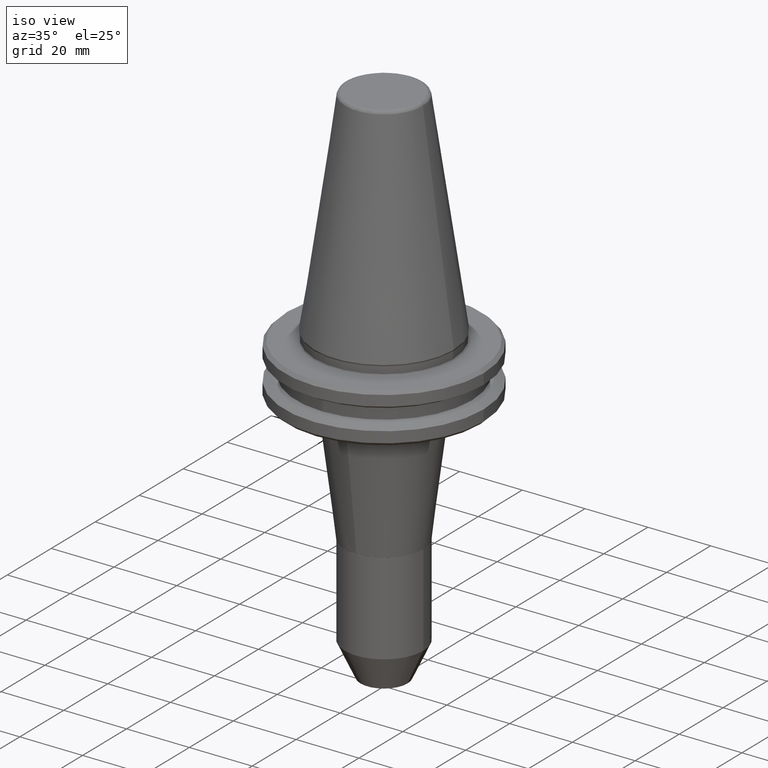
[diagram: clean part render]
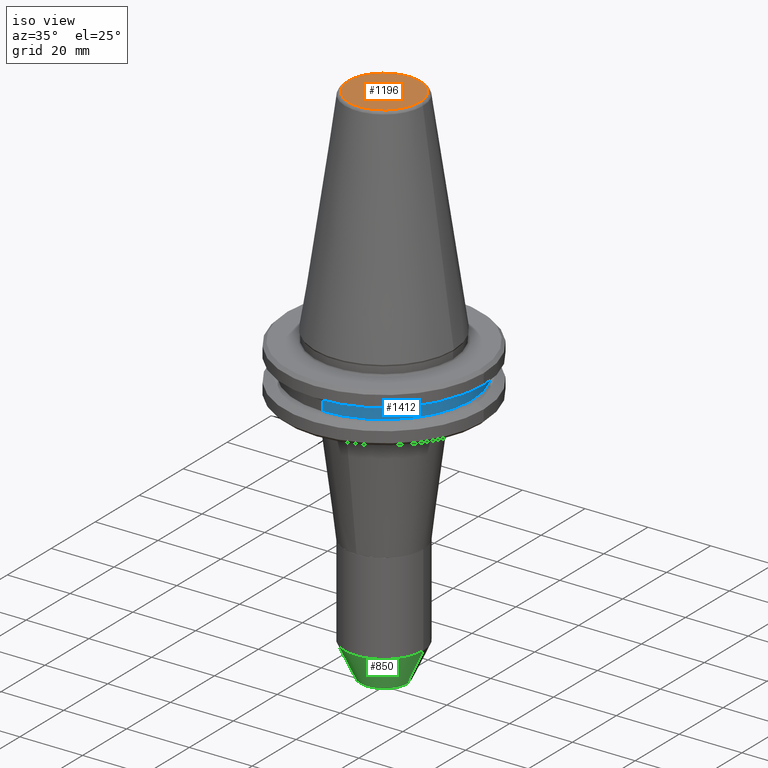
[diagram: same view with three faces highlighted in distinct colors, each labeled with its STEP entity id]
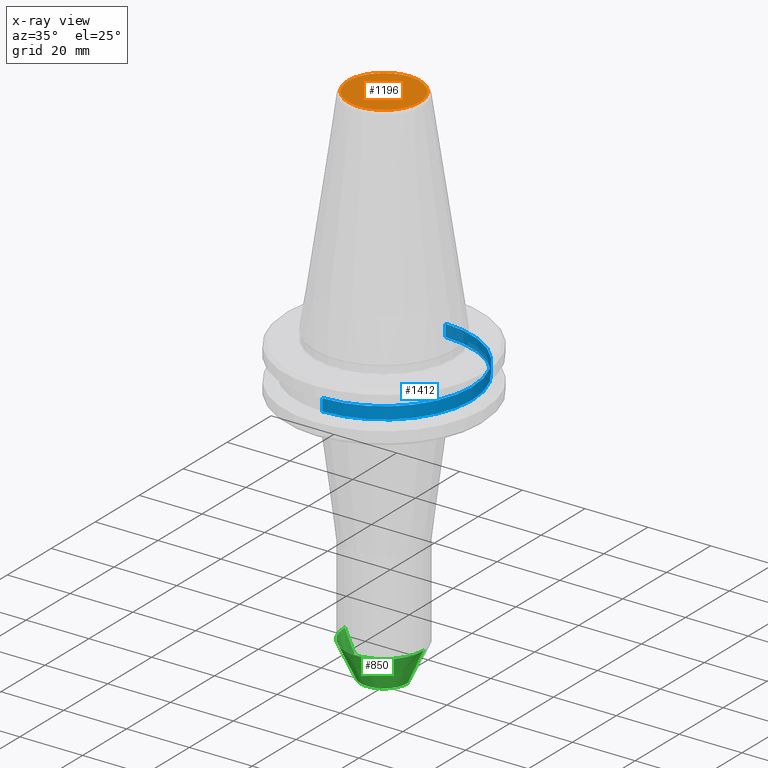
[diagram: x-ray of the same camera — body ghosted, the three highlighted faces saturated]
A machine part, iso view with three faces highlighted in distinct colors.
The next image is the same camera in x-ray (body ghosted, the three faces saturated) — at least one of them is partly hidden behind the body in this view.
Their STEP definitions:

[orange] entity #1196 — the highlighted planar face has unit normal (0, 0, 1).
#15 = CARTESIAN_POINT ( 'NONE',  ( -11.38516258738788200, 0.0000000000000000000, 68.39999999982889300 ) ) ;
#42 = ORIENTED_EDGE ( 'NONE', *, *, #130, .F. ) ;
#130 = EDGE_CURVE ( 'NONE', #1056, #1162, #1275, .T. ) ;
#282 = CARTESIAN_POINT ( 'NONE',  ( -11.38516258736446900, -22.77032517488440200, 68.39999999971479400 ) ) ;
#386 = DIRECTION ( 'NONE',  ( 1.000000000000000000, 0.0000000000000000000, -0.0000000000000000000 ) ) ;
#388 = DIRECTION ( 'NONE',  ( 0.0000000000000000000, 0.0000000000000000000, 1.000000000000000000 ) ) ;
#418 = CARTESIAN_POINT ( 'NONE',  ( -11.52178454100000100, -11.52178454100000100, 68.40000000000000600 ) ) ;
#423 = PLANE ( 'NONE',  #898 ) ;
#875 = CARTESIAN_POINT ( 'NONE',  ( 11.38516258738787800, 0.0000000000000000000, 68.39999999982889300 ) ) ;
#895 = CARTESIAN_POINT ( 'NONE',  ( -11.38516258738788200, 0.0000000000000000000, 68.39999999982889300 ) ) ;
#898 = AXIS2_PLACEMENT_3D ( 'NONE', #418, #388, #386 ) ;
#963 = CARTESIAN_POINT ( 'NONE',  ( 11.38516258736446900, -22.77032517488440200, 68.39999999971479400 ) ) ;
#964 = CARTESIAN_POINT ( 'NONE',  ( 11.38516258738787800, 0.0000000000000000000, 68.39999999982889300 ) ) ;
#996 = CARTESIAN_POINT ( 'NONE',  ( -11.38516258736446900, 22.77032517488440200, 68.39999999971480800 ) ) ;
#1009 = CARTESIAN_POINT ( 'NONE',  ( 11.38516258738787800, 0.0000000000000000000, 68.39999999982889300 ) ) ;
#1038 = CARTESIAN_POINT ( 'NONE',  ( -11.38516258738788200, 0.0000000000000000000, 68.39999999982889300 ) ) ;
#1054 = EDGE_CURVE ( 'NONE', #1162, #1056, #1229, .T. ) ;
#1056 = VERTEX_POINT ( 'NONE', #875 ) ;
#1076 = CARTESIAN_POINT ( 'NONE',  ( 11.38516258736446900, 22.77032517488440200, 68.39999999971480800 ) ) ;
#1162 = VERTEX_POINT ( 'NONE', #895 ) ;
#1177 = FACE_OUTER_BOUND ( 'NONE', #1266, .T. ) ;
#1196 = ADVANCED_FACE ( 'NONE', ( #1177 ), #423, .T. ) ;
#1229 =( BOUNDED_CURVE ( )  B_SPLINE_CURVE ( 3, ( #1038, #996, #1076, #1009 ),
 .UNSPECIFIED., .F., .T. ) 
 B_SPLINE_CURVE_WITH_KNOTS ( ( 4, 4 ),
 ( 0.0000000000000000000, 1.000000000000000000 ),
 .UNSPECIFIED. ) 
 CURVE ( )  GEOMETRIC_REPRESENTATION_ITEM ( )  RATIONAL_B_SPLINE_CURVE ( ( 0.9606698264625278500, 0.3202232754875091200, 0.3202232754875091200, 0.9606698264625278500 ) ) 
 REPRESENTATION_ITEM ( '' )  );
#1266 = EDGE_LOOP ( 'NONE', ( #1386, #42 ) ) ;
#1275 =( BOUNDED_CURVE ( )  B_SPLINE_CURVE ( 3, ( #964, #963, #282, #15 ),
 .UNSPECIFIED., .F., .T. ) 
 B_SPLINE_CURVE_WITH_KNOTS ( ( 4, 4 ),
 ( 0.0000000000000000000, 1.000000000000000000 ),
 .UNSPECIFIED. ) 
 CURVE ( )  GEOMETRIC_REPRESENTATION_ITEM ( )  RATIONAL_B_SPLINE_CURVE ( ( 0.9606698264625276300, 0.3202232754875091200, 0.3202232754875091200, 0.9606698264625276300 ) ) 
 REPRESENTATION_ITEM ( '' )  );
#1386 = ORIENTED_EDGE ( 'NONE', *, *, #1054, .F. ) ;

[blue] entity #1412 — the highlighted cylindrical surface (partial cylindrical patch) has radius 28 mm, axis along (0, -0, 1).
#10 = EDGE_CURVE ( 'NONE', #1215, #1416, #766, .T. ) ;
#61 = DIRECTION ( 'NONE',  ( 0.0000000000000000000, -3.097720492815727700E-017, 1.000000000000000000 ) ) ;
#77 = EDGE_CURVE ( 'NONE', #1458, #1174, #621, .T. ) ;
#85 = CARTESIAN_POINT ( 'NONE',  ( 3.429011037612589300E-015, 28.00000000000000000, -13.00000000000000200 ) ) ;
#103 = EDGE_CURVE ( 'NONE', #1215, #1458, #584, .T. ) ;
#121 = CIRCLE ( 'NONE', #1325, 28.00000000000000000 ) ;
#178 = CARTESIAN_POINT ( 'NONE',  ( 0.0000000000000000000, -28.00000000000000000, -13.00000000000000500 ) ) ;
#187 = CARTESIAN_POINT ( 'NONE',  ( 3.429011037612589300E-015, 28.00000000000000000, -13.00000000180000200 ) ) ;
#192 = CARTESIAN_POINT ( 'NONE',  ( 0.0000000000000000000, -28.00000000000000000, -9.200000001725001700 ) ) ;
#202 = DIRECTION ( 'NONE',  ( 0.0000000000000000000, -1.000000000000000000, -6.195440985631454100E-017 ) ) ;
#204 = CARTESIAN_POINT ( 'NONE',  ( 0.0000000000000000000, 0.0000000000000000000, -13.00000000000000400 ) ) ;
#205 = DIRECTION ( 'NONE',  ( 0.0000000000000000000, -3.097720492815727700E-017, 1.000000000000000000 ) ) ;
#274 = FACE_OUTER_BOUND ( 'NONE', #1161, .T. ) ;
#350 = DIRECTION ( 'NONE',  ( 0.0000000000000000000, -1.000000000000000000, -6.195440985631454100E-017 ) ) ;
#352 = DIRECTION ( 'NONE',  ( -0.0000000000000000000, 3.097720492815727700E-017, -1.000000000000000000 ) ) ;
#353 = CARTESIAN_POINT ( 'NONE',  ( 0.0000000000000000000, -1.177133786735620400E-016, -9.200000001724999900 ) ) ;
#368 = CARTESIAN_POINT ( 'NONE',  ( 0.0000000000000000000, -28.00000000000000000, -13.00000000180000500 ) ) ;
#380 = VECTOR ( 'NONE', #1114, 1000.000000000000000 ) ;
#433 = ORIENTED_EDGE ( 'NONE', *, *, #103, .T. ) ;
#438 = CARTESIAN_POINT ( 'NONE',  ( 3.429011037612589300E-015, 28.00000000000000000, -9.200000001724998100 ) ) ;
#584 = CIRCLE ( 'NONE', #1328, 28.00000000000000000 ) ;
#621 = LINE ( 'NONE', #85, #665 ) ;
#665 = VECTOR ( 'NONE', #61, 1000.000000000000000 ) ;
#766 = LINE ( 'NONE', #178, #380 ) ;
#950 = DIRECTION ( 'NONE',  ( 0.0000000000000000000, -3.097720492815727700E-017, 1.000000000000000000 ) ) ;
#951 = CARTESIAN_POINT ( 'NONE',  ( 0.0000000000000000000, 5.575902132921990900E-026, -13.00000000180000400 ) ) ;
#954 = DIRECTION ( 'NONE',  ( 0.0000000000000000000, -1.000000000000000000, -6.195440985631454100E-017 ) ) ;
#1107 = ORIENTED_EDGE ( 'NONE', *, *, #77, .T. ) ;
#1114 = DIRECTION ( 'NONE',  ( 0.0000000000000000000, -3.097720492815727700E-017, 1.000000000000000000 ) ) ;
#1161 = EDGE_LOOP ( 'NONE', ( #433, #1107, #1333, #1487 ) ) ;
#1174 = VERTEX_POINT ( 'NONE', #438 ) ;
#1215 = VERTEX_POINT ( 'NONE', #368 ) ;
#1218 = EDGE_CURVE ( 'NONE', #1174, #1416, #121, .T. ) ;
#1219 = CYLINDRICAL_SURFACE ( 'NONE', #1318, 28.00000000000000000 ) ;
#1318 = AXIS2_PLACEMENT_3D ( 'NONE', #204, #205, #202 ) ;
#1325 = AXIS2_PLACEMENT_3D ( 'NONE', #353, #352, #350 ) ;
#1328 = AXIS2_PLACEMENT_3D ( 'NONE', #951, #950, #954 ) ;
#1333 = ORIENTED_EDGE ( 'NONE', *, *, #1218, .T. ) ;
#1412 = ADVANCED_FACE ( 'NONE', ( #274 ), #1219, .T. ) ;
#1416 = VERTEX_POINT ( 'NONE', #192 ) ;
#1458 = VERTEX_POINT ( 'NONE', #187 ) ;
#1487 = ORIENTED_EDGE ( 'NONE', *, *, #10, .F. ) ;

[green] entity #850 — the highlighted conical surface has half-angle 25 deg.
#8 = CARTESIAN_POINT ( 'NONE',  ( 12.49999999999999600, 0.0000000000000000000, -89.27746539700001400 ) ) ;
#13 = DIRECTION ( 'NONE',  ( 1.000000000000000000, 0.0000000000000000000, 0.0000000000000000000 ) ) ;
#16 = VECTOR ( 'NONE', #1403, 999.9999999999998900 ) ;
#20 = DIRECTION ( 'NONE',  ( 0.0000000000000000000, 0.0000000000000000000, 1.000000000000000000 ) ) ;
#22 = CARTESIAN_POINT ( 'NONE',  ( 0.0000000000000000000, 0.0000000000000000000, -89.27746539700001400 ) ) ;
#89 = EDGE_CURVE ( 'NONE', #862, #163, #1235, .T. ) ;
#90 = FACE_OUTER_BOUND ( 'NONE', #411, .T. ) ;
#163 = VERTEX_POINT ( 'NONE', #8 ) ;
#190 = ORIENTED_EDGE ( 'NONE', *, *, #1070, .T. ) ;
#269 = AXIS2_PLACEMENT_3D ( 'NONE', #22, #20, #13 ) ;
#300 = ORIENTED_EDGE ( 'NONE', *, *, #680, .F. ) ;
#329 = LINE ( 'NONE', #1492, #16 ) ;
#411 = EDGE_LOOP ( 'NONE', ( #300, #190, #1414, #1188 ) ) ;
#511 = EDGE_CURVE ( 'NONE', #518, #163, #329, .T. ) ;
#518 = VERTEX_POINT ( 'NONE', #1360 ) ;
#680 = EDGE_CURVE ( 'NONE', #1058, #862, #1422, .T. ) ;
#718 = CONICAL_SURFACE ( 'NONE', #751, 12.49999999999999600, 0.4363323129824291900 ) ;
#751 = AXIS2_PLACEMENT_3D ( 'NONE', #1026, #1081, #1051 ) ;
#850 = ADVANCED_FACE ( 'NONE', ( #90 ), #718, .T. ) ;
#862 = VERTEX_POINT ( 'NONE', #980 ) ;
#887 = CARTESIAN_POINT ( 'NONE',  ( -7.500000000000012400, 1.224646799147354000E-015, -99.99999999999997200 ) ) ;
#896 = VECTOR ( 'NONE', #1380, 999.9999999999998900 ) ;
#960 = DIRECTION ( 'NONE',  ( 0.0000000000000000000, -0.0000000000000000000, 1.000000000000000000 ) ) ;
#961 = CARTESIAN_POINT ( 'NONE',  ( 0.0000000000000000000, 0.0000000000000000000, -99.99999999999997200 ) ) ;
#968 = DIRECTION ( 'NONE',  ( 1.000000000000000000, 0.0000000000000000000, 0.0000000000000000000 ) ) ;
#980 = CARTESIAN_POINT ( 'NONE',  ( -12.49999999999999600, 1.530808498934191100E-015, -89.27746539700001400 ) ) ;
#1026 = CARTESIAN_POINT ( 'NONE',  ( 0.0000000000000000000, 0.0000000000000000000, -89.27746539700001400 ) ) ;
#1049 = AXIS2_PLACEMENT_3D ( 'NONE', #961, #960, #968 ) ;
#1051 = DIRECTION ( 'NONE',  ( 1.000000000000000000, 0.0000000000000000000, 0.0000000000000000000 ) ) ;
#1058 = VERTEX_POINT ( 'NONE', #887 ) ;
#1070 = EDGE_CURVE ( 'NONE', #1058, #518, #1183, .T. ) ;
#1081 = DIRECTION ( 'NONE',  ( 0.0000000000000000000, -0.0000000000000000000, 1.000000000000000000 ) ) ;
#1183 = CIRCLE ( 'NONE', #1049, 7.500000000000012400 ) ;
#1188 = ORIENTED_EDGE ( 'NONE', *, *, #89, .F. ) ;
#1235 = CIRCLE ( 'NONE', #269, 12.50000000000000000 ) ;
#1360 = CARTESIAN_POINT ( 'NONE',  ( 7.500000000000012400, 0.0000000000000000000, -99.99999999999997200 ) ) ;
#1380 = DIRECTION ( 'NONE',  ( -0.4226182617260597100, 5.175581014840374100E-017, 0.9063077870434765900 ) ) ;
#1403 = DIRECTION ( 'NONE',  ( 0.4226182617260597100, 0.0000000000000000000, 0.9063077870434765900 ) ) ;
#1414 = ORIENTED_EDGE ( 'NONE', *, *, #511, .T. ) ;
#1422 = LINE ( 'NONE', #1494, #896 ) ;
#1492 = CARTESIAN_POINT ( 'NONE',  ( 12.49999999999999600, 0.0000000000000000000, -89.27746539700001400 ) ) ;
#1494 = CARTESIAN_POINT ( 'NONE',  ( -12.49999999999999600, 1.530808498934191100E-015, -89.27746539700001400 ) ) ;